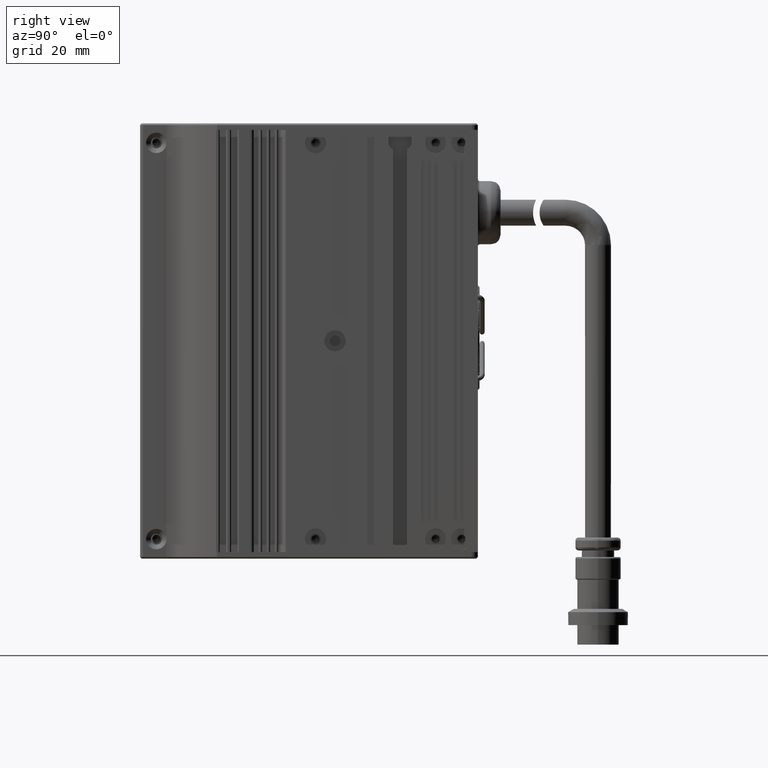
[diagram: clean part render]
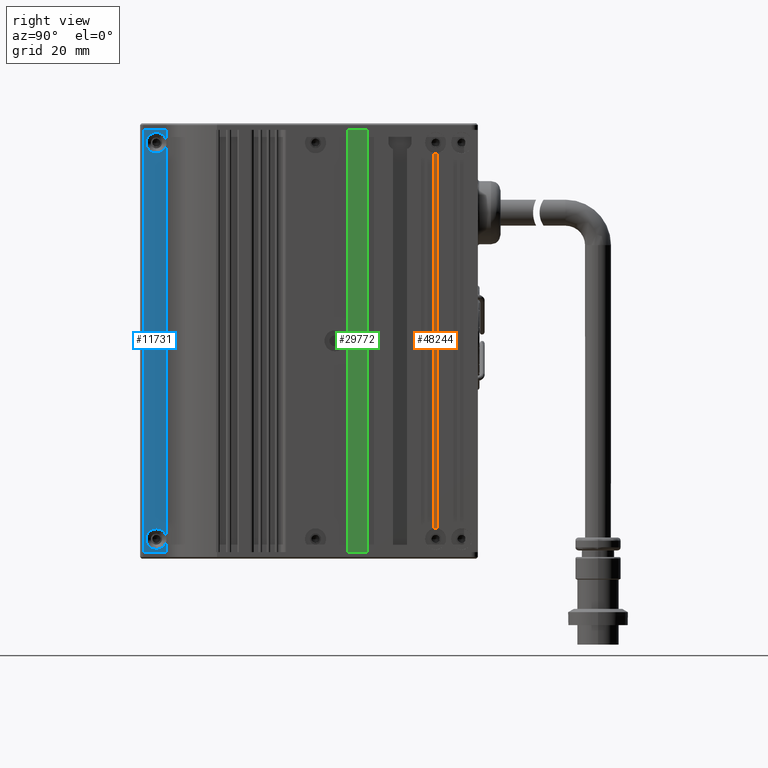
[diagram: same view with three faces highlighted in distinct colors, each labeled with its STEP entity id]
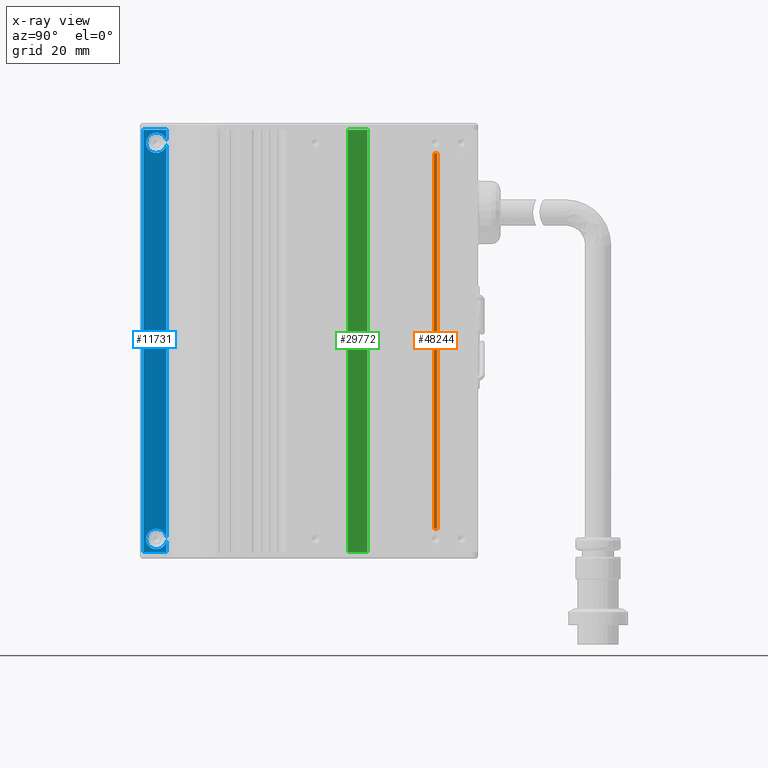
[diagram: x-ray of the same camera — body ghosted, the three highlighted faces saturated]
A machine part, right view with three faces highlighted in distinct colors.
The next image is the same camera in x-ray (body ghosted, the three faces saturated) — at least one of them is partly hidden behind the body in this view.
Their STEP definitions:

[orange] entity #48244 — the highlighted planar face has unit normal (-1, 0, 0).
#61 = CARTESIAN_POINT ( 'NONE',  ( -13.91201180637545900, 31.50452420306967100, 57.78869185533371700 ) ) ;
#91 = ORIENTED_EDGE ( 'NONE', *, *, #53118, .T. ) ;
#1626 = CARTESIAN_POINT ( 'NONE',  ( -13.91201180637545900, 30.50452420306966800, -65.00000000000000000 ) ) ;
#2273 = AXIS2_PLACEMENT_3D ( 'NONE', #7997, #35864, #47318 ) ;
#3092 = DIRECTION ( 'NONE',  ( 0.0000000000000000000, -0.0000000000000000000, 1.000000000000000000 ) ) ;
#4605 = VERTEX_POINT ( 'NONE', #61 ) ;
#7501 = ORIENTED_EDGE ( 'NONE', *, *, #11966, .F. ) ;
#7997 = CARTESIAN_POINT ( 'NONE',  ( -13.91201180637545900, 31.00452420306967800, -61.00000000000000000 ) ) ;
#10774 = CIRCLE ( 'NONE', #64600, 3.250000000000002700 ) ;
#11280 = DIRECTION ( 'NONE',  ( 0.0000000000000000000, 0.0000000000000000000, -1.000000000000000000 ) ) ;
#11966 = EDGE_CURVE ( 'NONE', #17023, #46156, #68358, .T. ) ;
#12762 = DIRECTION ( 'NONE',  ( 0.0000000000000000000, 0.0000000000000000000, 1.000000000000000000 ) ) ;
#13807 = CIRCLE ( 'NONE', #37931, 3.250000000000002700 ) ;
#14521 = DIRECTION ( 'NONE',  ( -1.000000000000000000, 0.0000000000000000000, 0.0000000000000000000 ) ) ;
#16218 = PLANE ( 'NONE',  #26056 ) ;
#16521 = ORIENTED_EDGE ( 'NONE', *, *, #46544, .T. ) ;
#17023 = VERTEX_POINT ( 'NONE', #62831 ) ;
#20020 = CARTESIAN_POINT ( 'NONE',  ( -13.91201180637545900, 30.50452420306966800, 57.78869185533372400 ) ) ;
#20588 = ORIENTED_EDGE ( 'NONE', *, *, #39070, .T. ) ;
#26056 = AXIS2_PLACEMENT_3D ( 'NONE', #32910, #61401, #72092 ) ;
#26617 = VECTOR ( 'NONE', #12762, 1000.000000000000000 ) ;
#27436 = DIRECTION ( 'NONE',  ( 0.0000000000000000000, 2.882309775469154200E-014, -1.000000000000000000 ) ) ;
#28004 = CARTESIAN_POINT ( 'NONE',  ( -13.91201180637545900, 31.00452420306967800, 61.00000000000000000 ) ) ;
#29645 = ORIENTED_EDGE ( 'NONE', *, *, #68436, .T. ) ;
#30234 = VECTOR ( 'NONE', #3092, 1000.000000000000000 ) ;
#30956 = CARTESIAN_POINT ( 'NONE',  ( -13.91201180637545900, 31.50452420306967100, -65.00000000000000000 ) ) ;
#32548 = CARTESIAN_POINT ( 'NONE',  ( -13.91201180637545900, 31.00452420306967800, 57.74999999999999300 ) ) ;
#32910 = CARTESIAN_POINT ( 'NONE',  ( -13.91201180637545900, 30.50452420306966800, -65.00000000000000000 ) ) ;
#35864 = DIRECTION ( 'NONE',  ( -1.000000000000000000, 0.0000000000000000000, 0.0000000000000000000 ) ) ;
#37931 = AXIS2_PLACEMENT_3D ( 'NONE', #28004, #38673, #11280 ) ;
#38673 = DIRECTION ( 'NONE',  ( -1.000000000000000000, 0.0000000000000000000, 0.0000000000000000000 ) ) ;
#39070 = EDGE_CURVE ( 'NONE', #4605, #56184, #50610, .T. ) ;
#46156 = VERTEX_POINT ( 'NONE', #20020 ) ;
#46544 = EDGE_CURVE ( 'NONE', #58792, #67138, #10774, .T. ) ;
#47318 = DIRECTION ( 'NONE',  ( 0.0000000000000000000, 0.0000000000000000000, -1.000000000000000000 ) ) ;
#48009 = DIRECTION ( 'NONE',  ( 0.0000000000000000000, 0.0000000000000000000, -1.000000000000000000 ) ) ;
#48244 = ADVANCED_FACE ( 'NONE', ( #50539 ), #16218, .F. ) ;
#49558 = CARTESIAN_POINT ( 'NONE',  ( -13.91201180637545900, 31.00452420306967800, 61.00000000000000000 ) ) ;
#50136 = CIRCLE ( 'NONE', #2273, 3.250000000000002700 ) ;
#50539 = FACE_OUTER_BOUND ( 'NONE', #53202, .T. ) ;
#50610 = CIRCLE ( 'NONE', #54242, 3.250000000000002700 ) ;
#51946 = ORIENTED_EDGE ( 'NONE', *, *, #67808, .T. ) ;
#53118 = EDGE_CURVE ( 'NONE', #67138, #4605, #56320, .T. ) ;
#53202 = EDGE_LOOP ( 'NONE', ( #29645, #16521, #91, #20588, #51946, #7501 ) ) ;
#54242 = AXIS2_PLACEMENT_3D ( 'NONE', #49558, #55160, #27436 ) ;
#54805 = CARTESIAN_POINT ( 'NONE',  ( -13.91201180637545900, 31.50452420306967100, -57.78869185533371000 ) ) ;
#55160 = DIRECTION ( 'NONE',  ( -1.000000000000000000, 0.0000000000000000000, 0.0000000000000000000 ) ) ;
#56184 = VERTEX_POINT ( 'NONE', #32548 ) ;
#56320 = LINE ( 'NONE', #30956, #30234 ) ;
#58792 = VERTEX_POINT ( 'NONE', #70231 ) ;
#61401 = DIRECTION ( 'NONE',  ( -1.000000000000000000, 0.0000000000000000000, 0.0000000000000000000 ) ) ;
#62831 = CARTESIAN_POINT ( 'NONE',  ( -13.91201180637545900, 30.50452420306966800, -57.78869185533371700 ) ) ;
#64283 = CARTESIAN_POINT ( 'NONE',  ( -13.91201180637545900, 31.00452420306967800, -61.00000000000000000 ) ) ;
#64600 = AXIS2_PLACEMENT_3D ( 'NONE', #64283, #14521, #48009 ) ;
#67138 = VERTEX_POINT ( 'NONE', #54805 ) ;
#67808 = EDGE_CURVE ( 'NONE', #56184, #46156, #13807, .T. ) ;
#68358 = LINE ( 'NONE', #1626, #26617 ) ;
#68436 = EDGE_CURVE ( 'NONE', #17023, #58792, #50136, .T. ) ;
#70231 = CARTESIAN_POINT ( 'NONE',  ( -13.91201180637545900, 31.00452420306967800, -57.74999999999999300 ) ) ;
#72092 = DIRECTION ( 'NONE',  ( 0.0000000000000000000, 0.0000000000000000000, 1.000000000000000000 ) ) ;

[blue] entity #11731 — the highlighted planar face has unit normal (-1, 0, 0).
#270 = ORIENTED_EDGE ( 'NONE', *, *, #67478, .F. ) ;
#628 = CARTESIAN_POINT ( 'NONE',  ( -22.66201180637545300, -58.99547579693032200, 65.00000000000001400 ) ) ;
#1119 = VERTEX_POINT ( 'NONE', #71998 ) ;
#1177 = CARTESIAN_POINT ( 'NONE',  ( -22.66201180637545300, -51.91295114031458300, -64.99999999999998600 ) ) ;
#1376 = ORIENTED_EDGE ( 'NONE', *, *, #37465, .F. ) ;
#2230 = VERTEX_POINT ( 'NONE', #18982 ) ;
#4146 = CIRCLE ( 'NONE', #55707, 3.150000000040571900 ) ;
#4594 = DIRECTION ( 'NONE',  ( 1.000000000000000000, 0.0000000000000000000, -0.0000000000000000000 ) ) ;
#7243 = DIRECTION ( 'NONE',  ( 0.0000000000000000000, 0.0000000000000000000, -1.000000000000000000 ) ) ;
#7795 = CARTESIAN_POINT ( 'NONE',  ( -22.66201180638908900, -54.99547579693032900, 57.84999999997354100 ) ) ;
#9671 = CARTESIAN_POINT ( 'NONE',  ( -22.66201180637545300, -2.245475796930341600, -65.00000000000000000 ) ) ;
#11172 = VECTOR ( 'NONE', #50820, 1000.000000000000000 ) ;
#11731 = ADVANCED_FACE ( 'NONE', ( #45911 ), #54830, .F. ) ;
#11971 = CARTESIAN_POINT ( 'NONE',  ( -22.66201180637545300, -51.91295114031458300, -64.99999999999998600 ) ) ;
#13479 = DIRECTION ( 'NONE',  ( -0.0000000000000000000, -1.000000000000000000, 1.665334536937734300E-016 ) ) ;
#14236 = ORIENTED_EDGE ( 'NONE', *, *, #52453, .F. ) ;
#16489 = VERTEX_POINT ( 'NONE', #24031 ) ;
#17043 = ORIENTED_EDGE ( 'NONE', *, *, #56548, .F. ) ;
#18275 = AXIS2_PLACEMENT_3D ( 'NONE', #69590, #36257, #41894 ) ;
#18277 = DIRECTION ( 'NONE',  ( 1.000000000000000000, 0.0000000000000000000, -0.0000000000000000000 ) ) ;
#18285 = EDGE_CURVE ( 'NONE', #1119, #60016, #52795, .T. ) ;
#18592 = AXIS2_PLACEMENT_3D ( 'NONE', #48490, #31719, #31481 ) ;
#18982 = CARTESIAN_POINT ( 'NONE',  ( -22.66201180635384900, -51.91295114031457600, -60.35150810222205600 ) ) ;
#18987 = VECTOR ( 'NONE', #67253, 1000.000000000000000 ) ;
#19057 = EDGE_CURVE ( 'NONE', #40938, #26342, #36927, .T. ) ;
#19377 = VECTOR ( 'NONE', #42350, 1000.000000000000000 ) ;
#19602 = ORIENTED_EDGE ( 'NONE', *, *, #22803, .F. ) ;
#19729 = EDGE_LOOP ( 'NONE', ( #58944, #42246, #14236, #35235, #66667, #72136, #24162, #17043, #270, #37090, #1376, #19602 ) ) ;
#19768 = CARTESIAN_POINT ( 'NONE',  ( -22.66201180633224500, -54.99547579693034300, -64.15000000004056300 ) ) ;
#19770 = CARTESIAN_POINT ( 'NONE',  ( -22.66201180637545300, -2.245475796930341600, -65.00000000000000000 ) ) ;
#20027 = CIRCLE ( 'NONE', #43819, 3.150000000026465000 ) ;
#20685 = CARTESIAN_POINT ( 'NONE',  ( -22.66201180637545300, -51.91295114031458300, -64.99999999999998600 ) ) ;
#22803 = EDGE_CURVE ( 'NONE', #2230, #37442, #62798, .T. ) ;
#24031 = CARTESIAN_POINT ( 'NONE',  ( -22.66201180635384900, -51.91295114031457600, -61.64849189777793700 ) ) ;
#24162 = ORIENTED_EDGE ( 'NONE', *, *, #64520, .F. ) ;
#24974 = AXIS2_PLACEMENT_3D ( 'NONE', #9671, #48741, #43942 ) ;
#26342 = VERTEX_POINT ( 'NONE', #57441 ) ;
#27110 = CARTESIAN_POINT ( 'NONE',  ( -22.66201180638908900, -54.99547579693032900, 61.00000000000000700 ) ) ;
#27645 = LINE ( 'NONE', #11971, #11172 ) ;
#27895 = VERTEX_POINT ( 'NONE', #52819 ) ;
#28433 = VERTEX_POINT ( 'NONE', #1177 ) ;
#28927 = DIRECTION ( 'NONE',  ( 0.0000000000000000000, 0.0000000000000000000, -1.000000000000000000 ) ) ;
#29431 = VECTOR ( 'NONE', #69840, 1000.000000000000000 ) ;
#29694 = CARTESIAN_POINT ( 'NONE',  ( -22.66201180633224500, -54.99547579693034300, -57.84999999995942900 ) ) ;
#30103 = LINE ( 'NONE', #19770, #41401 ) ;
#31165 = LINE ( 'NONE', #46233, #72078 ) ;
#31413 = CARTESIAN_POINT ( 'NONE',  ( -22.66201180637545300, -51.91295114031458300, -64.99999999999998600 ) ) ;
#31481 = DIRECTION ( 'NONE',  ( 0.0000000000000000000, 0.0000000000000000000, -1.000000000000000000 ) ) ;
#31719 = DIRECTION ( 'NONE',  ( 1.000000000000000000, 0.0000000000000000000, -0.0000000000000000000 ) ) ;
#33547 = CARTESIAN_POINT ( 'NONE',  ( -22.66201180637545300, -51.91295114031455400, 65.00000000000001400 ) ) ;
#34888 = DIRECTION ( 'NONE',  ( 1.000000000000000000, 0.0000000000000000000, -0.0000000000000000000 ) ) ;
#35235 = ORIENTED_EDGE ( 'NONE', *, *, #18285, .F. ) ;
#36257 = DIRECTION ( 'NONE',  ( 1.000000000000000000, 0.0000000000000000000, -0.0000000000000000000 ) ) ;
#36927 = CIRCLE ( 'NONE', #18592, 3.150000000026465000 ) ;
#37084 = DIRECTION ( 'NONE',  ( 0.0000000000000000000, 0.0000000000000000000, -1.000000000000000000 ) ) ;
#37090 = ORIENTED_EDGE ( 'NONE', *, *, #50178, .F. ) ;
#37442 = VERTEX_POINT ( 'NONE', #29694 ) ;
#37465 = EDGE_CURVE ( 'NONE', #37442, #48570, #42900, .T. ) ;
#38928 = EDGE_CURVE ( 'NONE', #47361, #1119, #48913, .T. ) ;
#40244 = CARTESIAN_POINT ( 'NONE',  ( -22.66201180633224500, -54.99547579693034300, -60.99999999999999300 ) ) ;
#40604 = CARTESIAN_POINT ( 'NONE',  ( -22.66201180638908900, -54.99547579693032900, 61.00000000000000700 ) ) ;
#40938 = VERTEX_POINT ( 'NONE', #7795 ) ;
#41401 = VECTOR ( 'NONE', #13479, 1000.000000000000000 ) ;
#41894 = DIRECTION ( 'NONE',  ( 0.0000000000000000000, 0.0000000000000000000, -1.000000000000000000 ) ) ;
#42246 = ORIENTED_EDGE ( 'NONE', *, *, #19057, .F. ) ;
#42350 = DIRECTION ( 'NONE',  ( -0.0000000000000000000, -1.665334536937734300E-016, -1.000000000000000000 ) ) ;
#42900 = CIRCLE ( 'NONE', #18275, 3.150000000040571900 ) ;
#43819 = AXIS2_PLACEMENT_3D ( 'NONE', #27110, #4594, #37084 ) ;
#43942 = DIRECTION ( 'NONE',  ( 0.0000000000000000000, 1.665334536937734300E-016, 1.000000000000000000 ) ) ;
#45911 = FACE_OUTER_BOUND ( 'NONE', #19729, .T. ) ;
#46233 = CARTESIAN_POINT ( 'NONE',  ( -22.66201180637545300, -2.245475796930319800, 65.00000000000000000 ) ) ;
#46507 = AXIS2_PLACEMENT_3D ( 'NONE', #40604, #18277, #28927 ) ;
#47361 = VERTEX_POINT ( 'NONE', #33547 ) ;
#48490 = CARTESIAN_POINT ( 'NONE',  ( -22.66201180638908900, -54.99547579693032900, 61.00000000000000700 ) ) ;
#48570 = VERTEX_POINT ( 'NONE', #19768 ) ;
#48741 = DIRECTION ( 'NONE',  ( -1.000000000000000000, 0.0000000000000000000, 0.0000000000000000000 ) ) ;
#48913 = LINE ( 'NONE', #20685, #19377 ) ;
#49206 = VERTEX_POINT ( 'NONE', #628 ) ;
#50178 = EDGE_CURVE ( 'NONE', #48570, #16489, #4146, .T. ) ;
#50820 = DIRECTION ( 'NONE',  ( -0.0000000000000000000, -1.665334536937734300E-016, -1.000000000000000000 ) ) ;
#51385 = CARTESIAN_POINT ( 'NONE',  ( -22.66201180638908900, -54.99547579693032900, 64.15000000002646600 ) ) ;
#51674 = DIRECTION ( 'NONE',  ( 1.000000000000000000, 0.0000000000000000000, -0.0000000000000000000 ) ) ;
#52453 = EDGE_CURVE ( 'NONE', #60016, #40938, #20027, .T. ) ;
#52795 = CIRCLE ( 'NONE', #46507, 3.150000000026465000 ) ;
#52819 = CARTESIAN_POINT ( 'NONE',  ( -22.66201180637545300, -58.99547579693035000, -64.99999999999998600 ) ) ;
#54830 = PLANE ( 'NONE',  #24974 ) ;
#55369 = CARTESIAN_POINT ( 'NONE',  ( -22.66201180637545300, -58.99547579693035000, -64.99999999999998600 ) ) ;
#55707 = AXIS2_PLACEMENT_3D ( 'NONE', #40244, #34888, #62887 ) ;
#56548 = EDGE_CURVE ( 'NONE', #28433, #27895, #30103, .T. ) ;
#57267 = CARTESIAN_POINT ( 'NONE',  ( -22.66201180633224500, -54.99547579693034300, -60.99999999999999300 ) ) ;
#57441 = CARTESIAN_POINT ( 'NONE',  ( -22.66201180638227100, -51.91295114031456100, 60.35150810225630400 ) ) ;
#58944 = ORIENTED_EDGE ( 'NONE', *, *, #67902, .F. ) ;
#59087 = EDGE_CURVE ( 'NONE', #47361, #49206, #31165, .T. ) ;
#60016 = VERTEX_POINT ( 'NONE', #51385 ) ;
#62798 = CIRCLE ( 'NONE', #64159, 3.150000000040571900 ) ;
#62887 = DIRECTION ( 'NONE',  ( 0.0000000000000000000, 0.0000000000000000000, -1.000000000000000000 ) ) ;
#64159 = AXIS2_PLACEMENT_3D ( 'NONE', #57267, #51674, #7243 ) ;
#64520 = EDGE_CURVE ( 'NONE', #27895, #49206, #68571, .T. ) ;
#66667 = ORIENTED_EDGE ( 'NONE', *, *, #38928, .F. ) ;
#67253 = DIRECTION ( 'NONE',  ( 0.0000000000000000000, 1.665334536937734300E-016, 1.000000000000000000 ) ) ;
#67478 = EDGE_CURVE ( 'NONE', #16489, #28433, #71263, .T. ) ;
#67902 = EDGE_CURVE ( 'NONE', #26342, #2230, #27645, .T. ) ;
#68571 = LINE ( 'NONE', #55369, #18987 ) ;
#68576 = DIRECTION ( 'NONE',  ( -0.0000000000000000000, -1.000000000000000000, 1.665334536937734300E-016 ) ) ;
#69590 = CARTESIAN_POINT ( 'NONE',  ( -22.66201180633224500, -54.99547579693034300, -60.99999999999999300 ) ) ;
#69840 = DIRECTION ( 'NONE',  ( -0.0000000000000000000, -1.665334536937734300E-016, -1.000000000000000000 ) ) ;
#71263 = LINE ( 'NONE', #31413, #29431 ) ;
#71998 = CARTESIAN_POINT ( 'NONE',  ( -22.66201180638227100, -51.91295114031456100, 61.64849189774368900 ) ) ;
#72078 = VECTOR ( 'NONE', #68576, 1000.000000000000000 ) ;
#72136 = ORIENTED_EDGE ( 'NONE', *, *, #59087, .T. ) ;

[green] entity #29772 — the highlighted planar face has unit normal (1, -0, 0).
#5355 = CARTESIAN_POINT ( 'NONE',  ( -13.06201180637544100, 2.004524203069662400, 65.00000000000000000 ) ) ;
#8838 = VECTOR ( 'NONE', #33470, 1000.000000000000000 ) ;
#9724 = DIRECTION ( 'NONE',  ( 2.340267758484731700E-016, 1.000000000000000000, 0.0000000000000000000 ) ) ;
#10382 = VECTOR ( 'NONE', #20908, 1000.000000000000000 ) ;
#11257 = CARTESIAN_POINT ( 'NONE',  ( -13.06201180637544100, 4.004524203069664200, 65.00000000000000000 ) ) ;
#13324 = LINE ( 'NONE', #38323, #23772 ) ;
#16898 = ORIENTED_EDGE ( 'NONE', *, *, #23657, .T. ) ;
#20874 = DIRECTION ( 'NONE',  ( 1.000000000000000000, -2.340267758484731700E-016, 0.0000000000000000000 ) ) ;
#20908 = DIRECTION ( 'NONE',  ( 0.0000000000000000000, -0.0000000000000000000, -1.000000000000000000 ) ) ;
#21386 = EDGE_LOOP ( 'NONE', ( #16898, #21450, #67507, #66522 ) ) ;
#21450 = ORIENTED_EDGE ( 'NONE', *, *, #61478, .T. ) ;
#23657 = EDGE_CURVE ( 'NONE', #37880, #55337, #36401, .T. ) ;
#23772 = VECTOR ( 'NONE', #29088, 1000.000000000000000 ) ;
#26656 = CARTESIAN_POINT ( 'NONE',  ( -13.06201180637544500, 2.004524203069656600, 65.00000000000000000 ) ) ;
#29088 = DIRECTION ( 'NONE',  ( 2.340267758484731700E-016, 1.000000000000000000, 0.0000000000000000000 ) ) ;
#29772 = ADVANCED_FACE ( 'NONE', ( #36967 ), #70681, .T. ) ;
#32164 = CARTESIAN_POINT ( 'NONE',  ( -13.06201180637544100, 10.00452420306966400, 65.00000000000000000 ) ) ;
#32373 = AXIS2_PLACEMENT_3D ( 'NONE', #26656, #20874, #9724 ) ;
#33470 = DIRECTION ( 'NONE',  ( 0.0000000000000000000, 1.000000000000000000, -0.0000000000000000000 ) ) ;
#35013 = CARTESIAN_POINT ( 'NONE',  ( -13.06201180637544100, 10.00452420306966400, -65.00000000000000000 ) ) ;
#36401 = LINE ( 'NONE', #42335, #10382 ) ;
#36967 = FACE_OUTER_BOUND ( 'NONE', #21386, .T. ) ;
#37880 = VERTEX_POINT ( 'NONE', #11257 ) ;
#38323 = CARTESIAN_POINT ( 'NONE',  ( -13.06201180637544500, 2.004524203069656600, -65.00000000000000000 ) ) ;
#38716 = VERTEX_POINT ( 'NONE', #35013 ) ;
#39664 = LINE ( 'NONE', #32164, #52765 ) ;
#41893 = LINE ( 'NONE', #5355, #8838 ) ;
#42335 = CARTESIAN_POINT ( 'NONE',  ( -13.06201180637544500, 4.004524203069664200, 65.00000000000000000 ) ) ;
#45131 = CARTESIAN_POINT ( 'NONE',  ( -13.06201180637544500, 4.004524203069664200, -65.00000000000000000 ) ) ;
#48992 = VERTEX_POINT ( 'NONE', #59659 ) ;
#52765 = VECTOR ( 'NONE', #59422, 1000.000000000000000 ) ;
#55337 = VERTEX_POINT ( 'NONE', #45131 ) ;
#59422 = DIRECTION ( 'NONE',  ( -0.0000000000000000000, 0.0000000000000000000, 1.000000000000000000 ) ) ;
#59659 = CARTESIAN_POINT ( 'NONE',  ( -13.06201180637544100, 10.00452420306966400, 65.00000000000000000 ) ) ;
#61478 = EDGE_CURVE ( 'NONE', #55337, #38716, #13324, .T. ) ;
#64939 = EDGE_CURVE ( 'NONE', #38716, #48992, #39664, .T. ) ;
#66522 = ORIENTED_EDGE ( 'NONE', *, *, #66652, .F. ) ;
#66652 = EDGE_CURVE ( 'NONE', #37880, #48992, #41893, .T. ) ;
#67507 = ORIENTED_EDGE ( 'NONE', *, *, #64939, .T. ) ;
#70681 = PLANE ( 'NONE',  #32373 ) ;